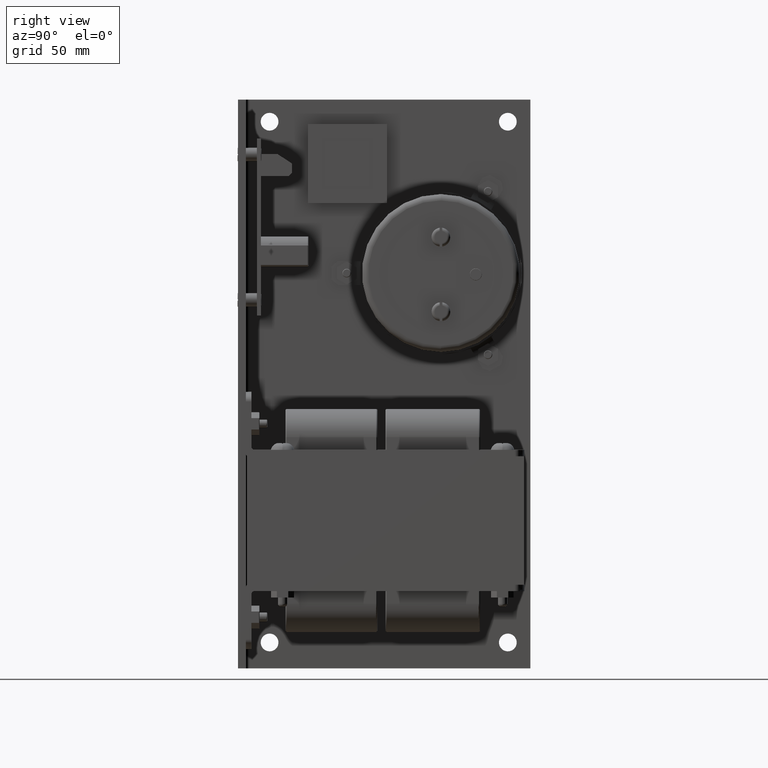
[diagram: clean part render]
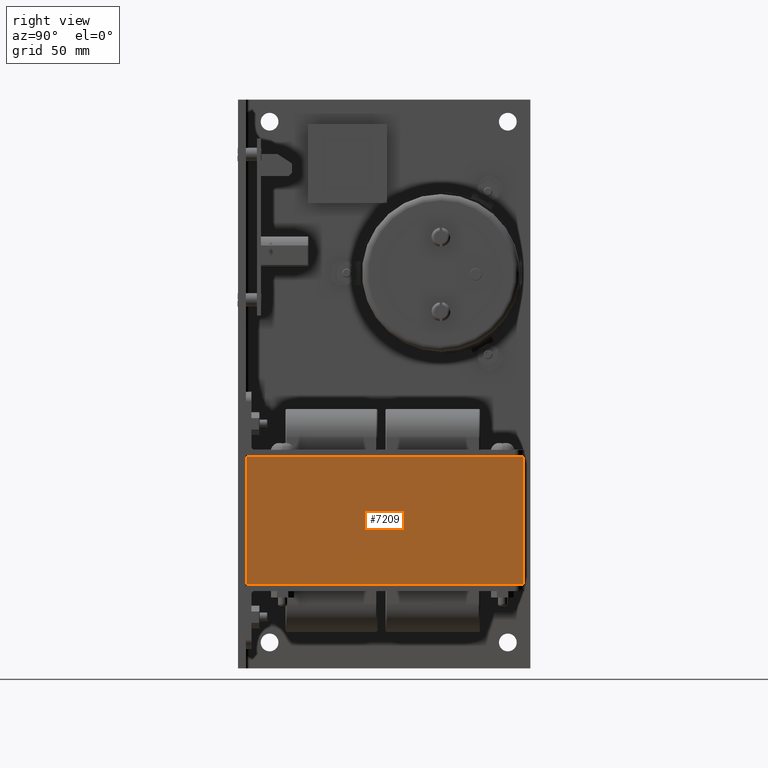
[diagram: same view with one face highlighted and labeled with its STEP entity id]
A machine part, right view. The second image highlights one B-rep face of the part: STEP entity #7209.
In plain terms, the highlighted planar face has unit normal (-1, 0, 0).
Its self-contained STEP definition (entity closure, byte-faithful):
#323 = ORIENTED_EDGE ( 'NONE', *, *, #21681, .T. ) ;
#2182 = LINE ( 'NONE', #22793, #7999 ) ;
#2357 = CARTESIAN_POINT ( 'NONE',  ( 5.401889999999984800, 4.517499999999999200, -3.177500000000000700 ) ) ;
#2616 = VECTOR ( 'NONE', #7687, 39.37007874015748100 ) ;
#2976 = EDGE_LOOP ( 'NONE', ( #323, #11515, #4053, #9630 ) ) ;
#3992 = CARTESIAN_POINT ( 'NONE',  ( 5.401889999999985600, 4.517499999999999200, -2.641099303533781300E-015 ) ) ;
#4053 = ORIENTED_EDGE ( 'NONE', *, *, #19383, .F. ) ;
#4526 = VERTEX_POINT ( 'NONE', #15612 ) ;
#4776 = CARTESIAN_POINT ( 'NONE',  ( 5.401889999999984800, 0.1375000000000000100, -1.142500000000001400 ) ) ;
#5166 = VECTOR ( 'NONE', #23607, 39.37007874015748100 ) ;
#6622 = LINE ( 'NONE', #2357, #5166 ) ;
#6817 = DIRECTION ( 'NONE',  ( -0.0000000000000000000, -1.000000000000000000, -0.0000000000000000000 ) ) ;
#6855 = CARTESIAN_POINT ( 'NONE',  ( 5.401889999999985600, 4.517499999999999200, -2.641099303533781300E-015 ) ) ;
#6916 = VERTEX_POINT ( 'NONE', #7912 ) ;
#7209 = ADVANCED_FACE ( 'NONE', ( #12793 ), #29815, .F. ) ;
#7687 = DIRECTION ( 'NONE',  ( -4.889213411479663800E-016, 0.0000000000000000000, -1.000000000000000000 ) ) ;
#7912 = CARTESIAN_POINT ( 'NONE',  ( 5.401889999999984800, 4.517499999999999200, -1.142500000000001400 ) ) ;
#7999 = VECTOR ( 'NONE', #6817, 39.37007874015748100 ) ;
#9630 = ORIENTED_EDGE ( 'NONE', *, *, #12159, .T. ) ;
#9633 = EDGE_CURVE ( 'NONE', #26538, #4526, #6622, .T. ) ;
#11515 = ORIENTED_EDGE ( 'NONE', *, *, #9633, .F. ) ;
#12159 = EDGE_CURVE ( 'NONE', #6916, #13305, #2182, .T. ) ;
#12793 = FACE_OUTER_BOUND ( 'NONE', #2976, .T. ) ;
#13263 = CARTESIAN_POINT ( 'NONE',  ( 5.401889999999984800, 4.517499999999999200, -3.177500000000000700 ) ) ;
#13305 = VERTEX_POINT ( 'NONE', #4776 ) ;
#15612 = CARTESIAN_POINT ( 'NONE',  ( 5.401889999999984800, 0.1375000000000000100, -3.177500000000000700 ) ) ;
#15781 = DIRECTION ( 'NONE',  ( -4.889213411479663800E-016, 0.0000000000000000000, -1.000000000000000000 ) ) ;
#15913 = DIRECTION ( 'NONE',  ( -1.000000000000000000, 0.0000000000000000000, 4.889213411479664800E-016 ) ) ;
#16584 = VECTOR ( 'NONE', #15781, 39.37007874015748100 ) ;
#19383 = EDGE_CURVE ( 'NONE', #6916, #26538, #24958, .T. ) ;
#21611 = CARTESIAN_POINT ( 'NONE',  ( 5.401889999999985600, 0.1375000000000000100, -2.641099303533781300E-015 ) ) ;
#21681 = EDGE_CURVE ( 'NONE', #13305, #4526, #29537, .T. ) ;
#22793 = CARTESIAN_POINT ( 'NONE',  ( 5.401889999999984800, 4.517499999999999200, -1.142500000000001400 ) ) ;
#22930 = DIRECTION ( 'NONE',  ( 4.889213411479664800E-016, 0.0000000000000000000, 1.000000000000000000 ) ) ;
#23607 = DIRECTION ( 'NONE',  ( -0.0000000000000000000, -1.000000000000000000, -0.0000000000000000000 ) ) ;
#24958 = LINE ( 'NONE', #3992, #16584 ) ;
#26132 = AXIS2_PLACEMENT_3D ( 'NONE', #6855, #15913, #22930 ) ;
#26538 = VERTEX_POINT ( 'NONE', #13263 ) ;
#29537 = LINE ( 'NONE', #21611, #2616 ) ;
#29815 = PLANE ( 'NONE',  #26132 ) ;